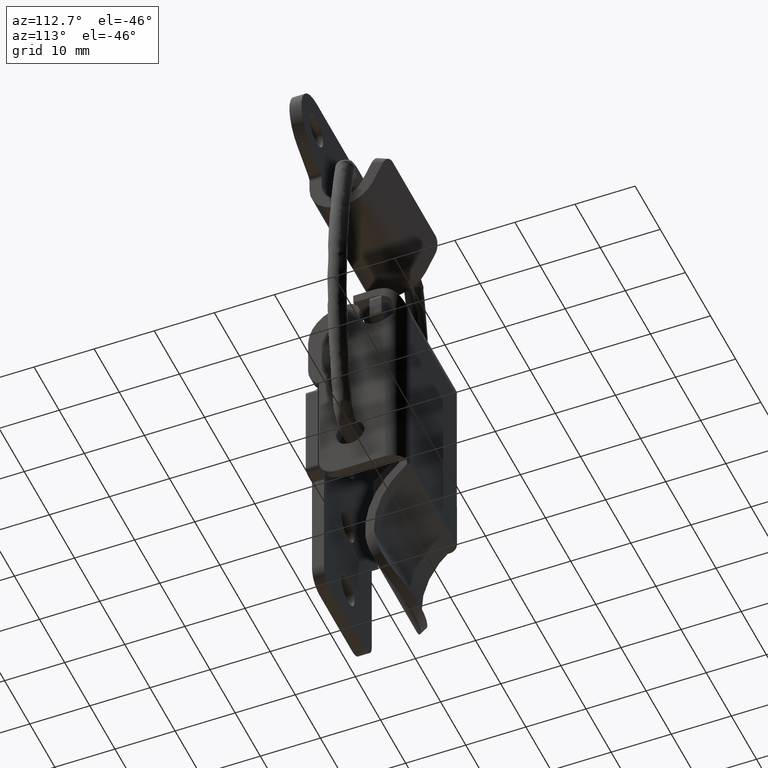
[diagram: clean part render]
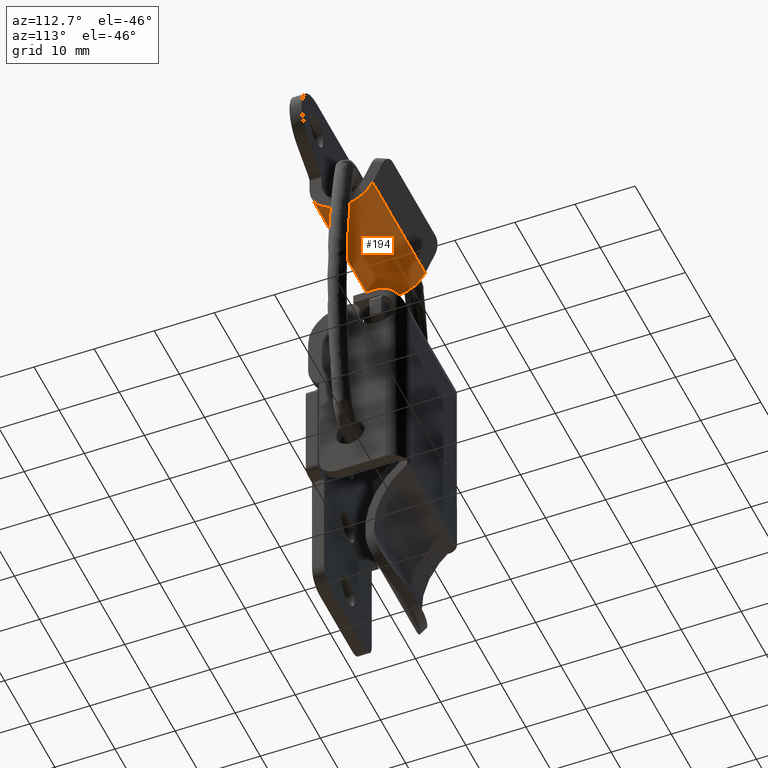
[diagram: same view with one face highlighted and labeled with its STEP entity id]
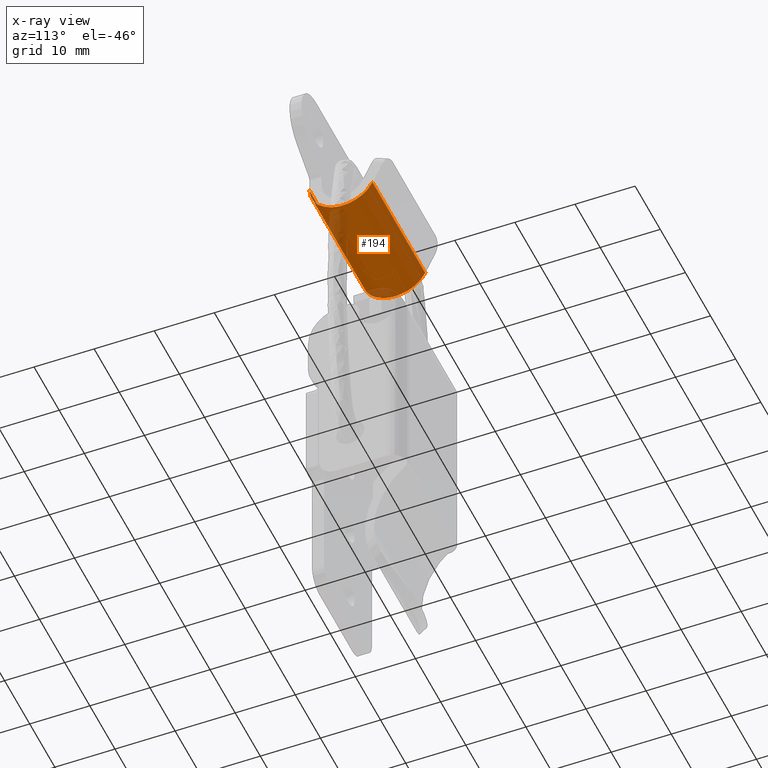
[diagram: x-ray of the same camera — body ghosted, the highlighted face saturated]
A machine part, auxiliary view. The second image highlights one B-rep face of the part: STEP entity #194.
The next image is the same camera in x-ray: the body ghosted, the highlighted face saturated — about 13% of this face is hidden behind the body in this view.
In plain terms, the highlighted cylindrical surface (edge-blend (fillet) strip) has radius 5.5 mm, axis along (1, 0, -0).
Its self-contained STEP definition (entity closure, byte-faithful):
#194=ADVANCED_FACE('',(#413),#412,.T.);
#412=CYLINDRICAL_SURFACE('',#1809,5.50000000000E+00);
#413=FACE_OUTER_BOUND('',#1810,.T.);
#1806=CARTESIAN_POINT('',(-1.00200000000E+03,-3.50000000000E+00,-1.04995771110E+01));
#1807=DIRECTION('',(-1.00000000000E+00,-0.00000000000E+00,-0.00000000000E+00));
#1808=DIRECTION('',(-0.00000000000E+00,-0.00000000000E+00,1.00000000000E+00));
#1809=AXIS2_PLACEMENT_3D('',#1806,#1807,#1808);
#1810=EDGE_LOOP('',(#2804,#2805,#2806,#2807));
#2804=ORIENTED_EDGE('',*,*,#3564,.F.);
#2805=ORIENTED_EDGE('',*,*,#3542,.F.);
#2806=ORIENTED_EDGE('',*,*,#3529,.F.);
#2807=ORIENTED_EDGE('',*,*,#3565,.F.);
#3529=EDGE_CURVE('',#3953,#3960,#3961,.T.);
#3542=EDGE_CURVE('',#3960,#4046,#4047,.T.);
#3564=EDGE_CURVE('',#4046,#4197,#4198,.T.);
#3565=EDGE_CURVE('',#4197,#3953,#4204,.T.);
#3953=VERTEX_POINT('',#6519);
#3960=VERTEX_POINT('',#6523);
#3961=CIRCLE('',#6527,5.50000000000E+00);
#4046=VERTEX_POINT('',#6574);
#4047=LINE('',#6575,#6576);
#4197=VERTEX_POINT('',#6674);
#4198=CIRCLE('',#6678,5.50000000000E+00);
#4204=LINE('',#6679,#6680);
#6519=CARTESIAN_POINT('',(-2.00000000000E+00,-8.47633952164E+00,-1.28418078779E+01));
#6523=CARTESIAN_POINT('',(-2.00000000000E+00,2.00000000000E+00,-1.04995771110E+01));
#6524=CARTESIAN_POINT('',(-2.00000000000E+00,-3.50000000000E+00,-1.04995771110E+01));
#6525=DIRECTION('',(1.00000000000E+00,-0.00000000000E+00,0.00000000000E+00));
#6526=DIRECTION('',(0.00000000000E+00,1.00000000000E+00,1.83690953073E-16));
#6527=AXIS2_PLACEMENT_3D('',#6524,#6525,#6526);
#6574=CARTESIAN_POINT('',(-2.30000000000E+01,2.00000000000E+00,-1.04995771110E+01));
#6575=CARTESIAN_POINT('',(-2.00000000000E+00,2.00000000000E+00,-1.04995771110E+01));
#6576=VECTOR('',#6577,2.10000000000E+01);
#6577=DIRECTION('',(-1.00000000000E+00,0.00000000000E+00,0.00000000000E+00));
#6674=CARTESIAN_POINT('',(-2.30000000000E+01,-8.47633952164E+00,-1.28418078779E+01));
#6675=CARTESIAN_POINT('',(-2.30000000000E+01,-3.50000000000E+00,-1.04995771110E+01));
#6676=DIRECTION('',(-1.00000000000E+00,-0.00000000000E+00,-0.00000000000E+00));
#6677=DIRECTION('',(-0.00000000000E+00,-0.00000000000E+00,1.00000000000E+00));
#6678=AXIS2_PLACEMENT_3D('',#6675,#6676,#6677);
#6679=CARTESIAN_POINT('',(-2.30000000000E+01,-8.47633952164E+00,-1.28418078779E+01));
#6680=VECTOR('',#6681,2.10000000000E+01);
#6681=DIRECTION('',(1.00000000000E+00,0.00000000000E+00,0.00000000000E+00));